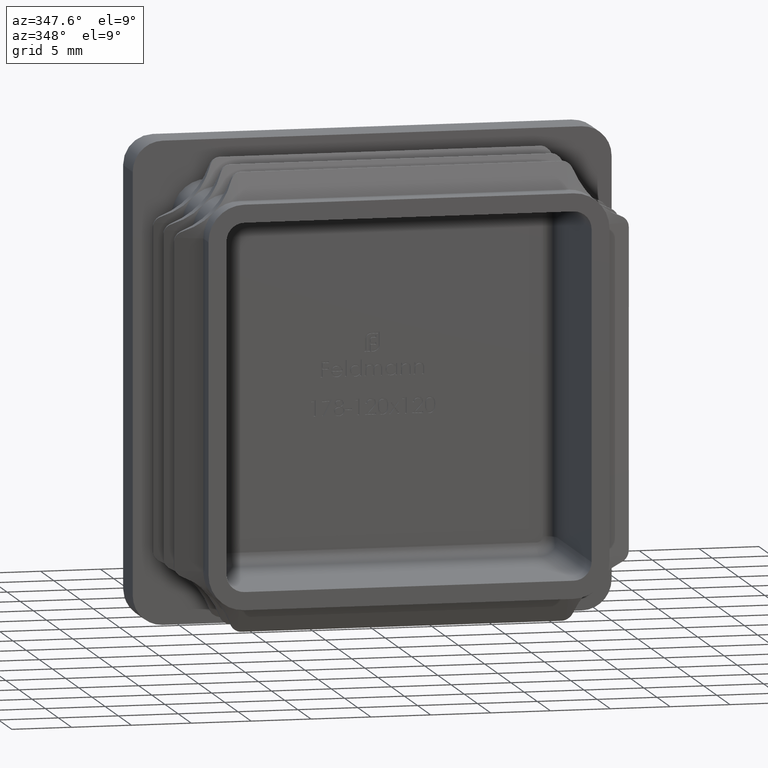
[diagram: clean part render]
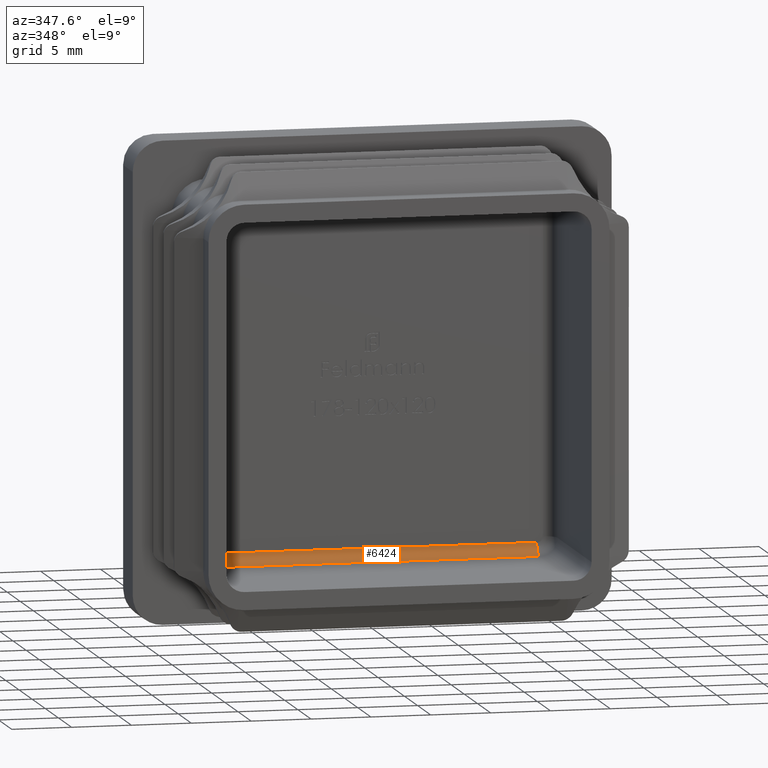
[diagram: same view with one face highlighted and labeled with its STEP entity id]
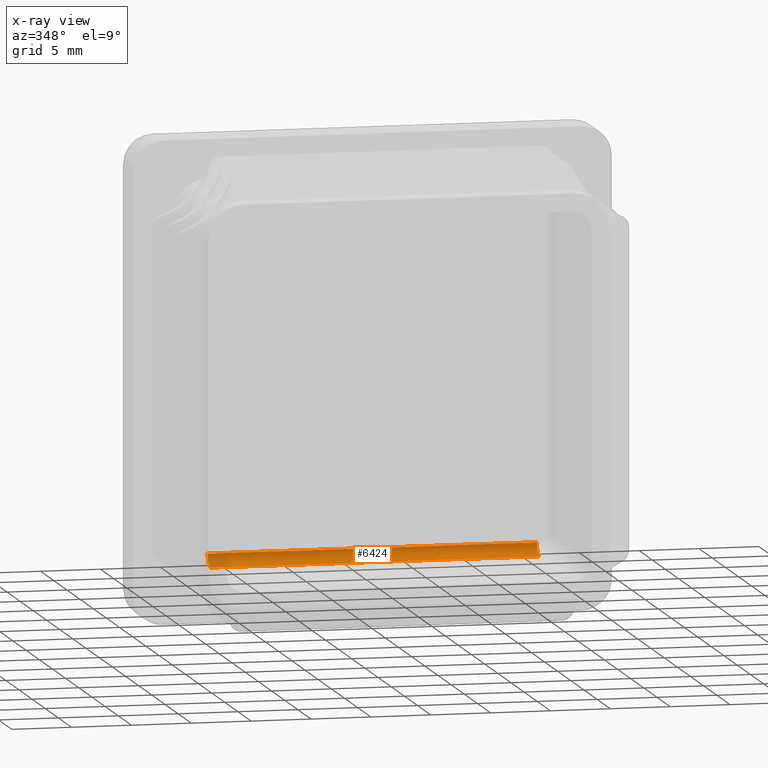
[diagram: x-ray of the same camera — body ghosted, the highlighted face saturated]
A machine part, auxiliary view. The second image highlights one B-rep face of the part: STEP entity #6424.
The next image is the same camera in x-ray: the body ghosted, the highlighted face saturated — about 6% of this face is hidden behind the body in this view.
In plain terms, the highlighted cylindrical surface (edge-blend (fillet) strip) has radius 1 mm, axis along (1, -0, 0).
Its self-contained STEP definition (entity closure, byte-faithful):
#81 = AXIS2_PLACEMENT_3D ( 'NONE', #2316, #13265, #6808 ) ;
#139 = AXIS2_PLACEMENT_3D ( 'NONE', #2640, #15236, #7385 ) ;
#664 = VECTOR ( 'NONE', #18988, 1000.000000000000000 ) ;
#1929 = EDGE_CURVE ( 'NONE', #18769, #4057, #14723, .T. ) ;
#1935 = LINE ( 'NONE', #17530, #4446 ) ;
#2178 = CARTESIAN_POINT ( 'NONE',  ( 0.000000000000000000, 0.000000000000000000, -14.25000000000000533 ) ) ;
#2316 = CARTESIAN_POINT ( 'NONE',  ( 0.000000000000000000, -1.000000000000000000, -14.25000000000000533 ) ) ;
#2640 = CARTESIAN_POINT ( 'NONE',  ( -13.74999999999999112, -1.000000000000000000, -14.25000000000000533 ) ) ;
#3037 = ORIENTED_EDGE ( 'NONE', *, *, #1929, .F. ) ;
#3079 = ORIENTED_EDGE ( 'NONE', *, *, #16089, .F. ) ;
#3120 = CARTESIAN_POINT ( 'NONE',  ( 13.75000000000000533, -0.9999999999999991118, -15.25000000000000711 ) ) ;
#3329 = CARTESIAN_POINT ( 'NONE',  ( 13.75000000000000533, 0.000000000000000000, -14.25000000000000533 ) ) ;
#3542 = DIRECTION ( 'NONE',  ( -1.000000000000000000, -0.000000000000000000, -0.000000000000000000 ) ) ;
#3630 = VERTEX_POINT ( 'NONE', #3120 ) ;
#4057 = VERTEX_POINT ( 'NONE', #3329 ) ;
#4446 = VECTOR ( 'NONE', #3542, 1000.000000000000000 ) ;
#5247 = CIRCLE ( 'NONE', #139, 1.000000000000000888 ) ;
#6098 = VERTEX_POINT ( 'NONE', #13626 ) ;
#6424 = ADVANCED_FACE ( 'NONE', ( #12420 ), #10965, .F. ) ;
#6489 = EDGE_LOOP ( 'NONE', ( #13456, #3079, #9929, #3037 ) ) ;
#6808 = DIRECTION ( 'NONE',  ( 0.000000000000000000, 0.000000000000000000, -1.000000000000000000 ) ) ;
#6944 = CARTESIAN_POINT ( 'NONE',  ( 13.75000000000000533, -1.000000000000000000, -14.25000000000000533 ) ) ;
#7385 = DIRECTION ( 'NONE',  ( 0.000000000000000000, 0.000000000000000000, -1.000000000000000000 ) ) ;
#8564 = DIRECTION ( 'NONE',  ( 0.000000000000000000, 0.000000000000000000, 1.000000000000000000 ) ) ;
#9929 = ORIENTED_EDGE ( 'NONE', *, *, #17913, .F. ) ;
#10332 = CIRCLE ( 'NONE', #15764, 1.000000000000000888 ) ;
#10965 = CYLINDRICAL_SURFACE ( 'NONE', #81, 1.000000000000000888 ) ;
#12420 = FACE_OUTER_BOUND ( 'NONE', #6489, .T. ) ;
#12486 = EDGE_CURVE ( 'NONE', #6098, #18769, #5247, .T. ) ;
#13265 = DIRECTION ( 'NONE',  ( 1.000000000000000000, -0.000000000000000000, 0.000000000000000000 ) ) ;
#13456 = ORIENTED_EDGE ( 'NONE', *, *, #12486, .F. ) ;
#13626 = CARTESIAN_POINT ( 'NONE',  ( -13.74999999999999112, -0.9999999999999991118, -15.25000000000000711 ) ) ;
#14723 = LINE ( 'NONE', #2178, #664 ) ;
#15236 = DIRECTION ( 'NONE',  ( 1.000000000000000000, -0.000000000000000000, 0.000000000000000000 ) ) ;
#15764 = AXIS2_PLACEMENT_3D ( 'NONE', #6944, #17969, #8564 ) ;
#16089 = EDGE_CURVE ( 'NONE', #3630, #6098, #1935, .T. ) ;
#17530 = CARTESIAN_POINT ( 'NONE',  ( -13.74999999999999112, -0.9999999999999991118, -15.25000000000000711 ) ) ;
#17777 = CARTESIAN_POINT ( 'NONE',  ( -13.74999999999999112, 0.000000000000000000, -14.25000000000000533 ) ) ;
#17913 = EDGE_CURVE ( 'NONE', #4057, #3630, #10332, .T. ) ;
#17969 = DIRECTION ( 'NONE',  ( -1.000000000000000000, 0.000000000000000000, 0.000000000000000000 ) ) ;
#18769 = VERTEX_POINT ( 'NONE', #17777 ) ;
#18988 = DIRECTION ( 'NONE',  ( 1.000000000000000000, -0.000000000000000000, 0.000000000000000000 ) ) ;